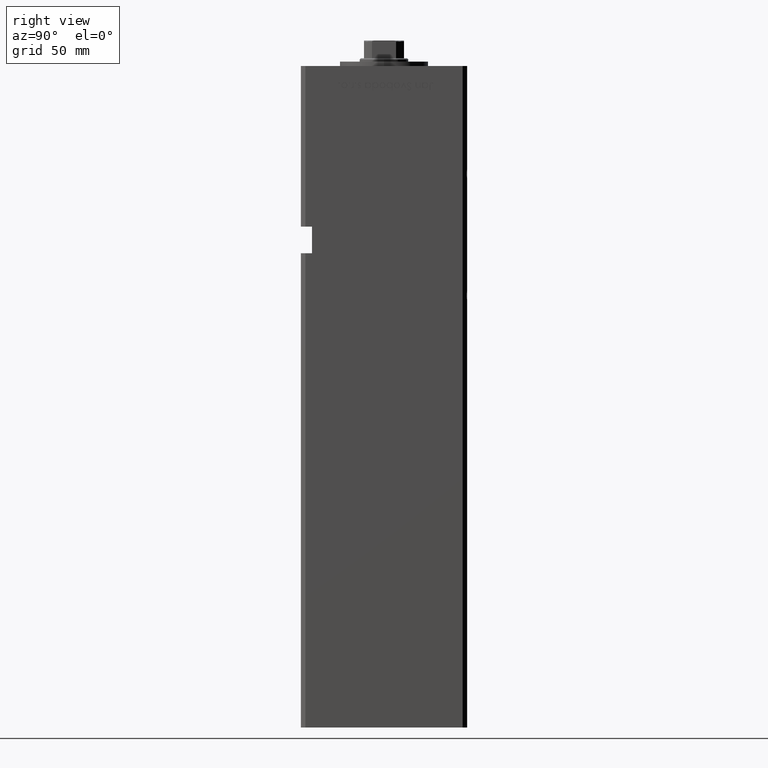
[diagram: clean part render]
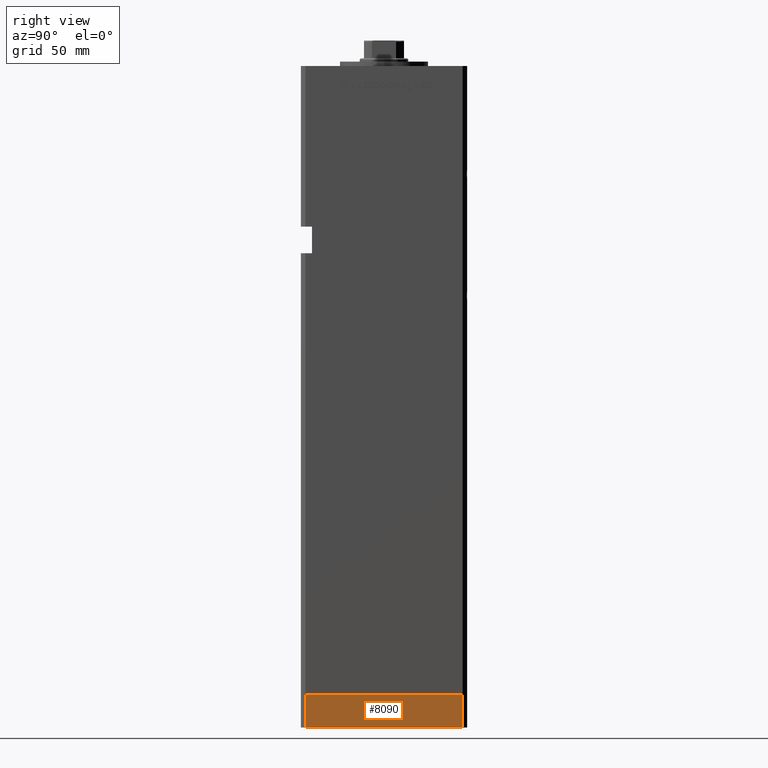
[diagram: same view with one face highlighted and labeled with its STEP entity id]
A machine part, right view. The second image highlights one B-rep face of the part: STEP entity #8090.
In plain terms, the highlighted planar face has unit normal (1, 0, 0).
Its self-contained STEP definition (entity closure, byte-faithful):
#991 = VECTOR ( 'NONE', #14729, 1000.000000000000000 ) ;
#2010 = CARTESIAN_POINT ( 'NONE',  ( -42.50000000000000711, 35.49999999999997158, -15.00000000000000000 ) ) ;
#4139 = VECTOR ( 'NONE', #43138, 1000.000000000000000 ) ;
#4899 = EDGE_CURVE ( 'NONE', #38826, #5214, #30661, .T. ) ;
#5214 = VERTEX_POINT ( 'NONE', #34639 ) ;
#8090 = ADVANCED_FACE ( 'NONE', ( #14822 ), #23188, .T. ) ;
#10252 = EDGE_LOOP ( 'NONE', ( #52006, #51998, #18369, #29684 ) ) ;
#12677 = CARTESIAN_POINT ( 'NONE',  ( -42.50000000000000711, 35.49999999999997158, -15.00000000000000000 ) ) ;
#13197 = CARTESIAN_POINT ( 'NONE',  ( -42.50000000000000000, -35.50000000000000711, -15.00000000000000000 ) ) ;
#14729 = DIRECTION ( 'NONE',  ( 9.773090005503140331E-17, -1.000000000000000000, 0.000000000000000000 ) ) ;
#14822 = FACE_OUTER_BOUND ( 'NONE', #10252, .T. ) ;
#16782 = EDGE_CURVE ( 'NONE', #37620, #5214, #49538, .T. ) ;
#16964 = DIRECTION ( 'NONE',  ( 0.000000000000000000, 0.000000000000000000, 1.000000000000000000 ) ) ;
#17253 = EDGE_CURVE ( 'NONE', #40606, #37620, #35459, .T. ) ;
#18074 = CARTESIAN_POINT ( 'NONE',  ( -42.50000000000000711, 35.49999999999997158, -15.00000000000000000 ) ) ;
#18369 = ORIENTED_EDGE ( 'NONE', *, *, #17253, .T. ) ;
#21537 = DIRECTION ( 'NONE',  ( 9.773090005503140331E-17, -1.000000000000000000, 0.000000000000000000 ) ) ;
#22169 = AXIS2_PLACEMENT_3D ( 'NONE', #18074, #47118, #34758 ) ;
#22329 = CARTESIAN_POINT ( 'NONE',  ( -42.50000000000000711, 35.49999999999997158, 0.000000000000000000 ) ) ;
#23188 = PLANE ( 'NONE',  #22169 ) ;
#23883 = CARTESIAN_POINT ( 'NONE',  ( -42.50000000000000711, 35.49999999999997158, -15.00000000000000000 ) ) ;
#27597 = VECTOR ( 'NONE', #16964, 1000.000000000000000 ) ;
#29684 = ORIENTED_EDGE ( 'NONE', *, *, #16782, .T. ) ;
#30661 = LINE ( 'NONE', #22329, #38485 ) ;
#34639 = CARTESIAN_POINT ( 'NONE',  ( -42.50000000000000000, -35.50000000000000711, 0.000000000000000000 ) ) ;
#34758 = DIRECTION ( 'NONE',  ( 9.773090005503140331E-17, -1.000000000000000000, 0.000000000000000000 ) ) ;
#35459 = LINE ( 'NONE', #23883, #991 ) ;
#37040 = CARTESIAN_POINT ( 'NONE',  ( -42.50000000000000000, -35.50000000000000711, -15.00000000000000000 ) ) ;
#37620 = VERTEX_POINT ( 'NONE', #37040 ) ;
#38485 = VECTOR ( 'NONE', #21537, 1000.000000000000000 ) ;
#38826 = VERTEX_POINT ( 'NONE', #52809 ) ;
#40379 = EDGE_CURVE ( 'NONE', #40606, #38826, #50954, .T. ) ;
#40606 = VERTEX_POINT ( 'NONE', #12677 ) ;
#43138 = DIRECTION ( 'NONE',  ( 0.000000000000000000, 0.000000000000000000, 1.000000000000000000 ) ) ;
#47118 = DIRECTION ( 'NONE',  ( -1.000000000000000000, -9.773090005503140331E-17, 0.000000000000000000 ) ) ;
#49538 = LINE ( 'NONE', #13197, #27597 ) ;
#50954 = LINE ( 'NONE', #2010, #4139 ) ;
#51998 = ORIENTED_EDGE ( 'NONE', *, *, #40379, .F. ) ;
#52006 = ORIENTED_EDGE ( 'NONE', *, *, #4899, .F. ) ;
#52809 = CARTESIAN_POINT ( 'NONE',  ( -42.50000000000000711, 35.49999999999997158, 0.000000000000000000 ) ) ;